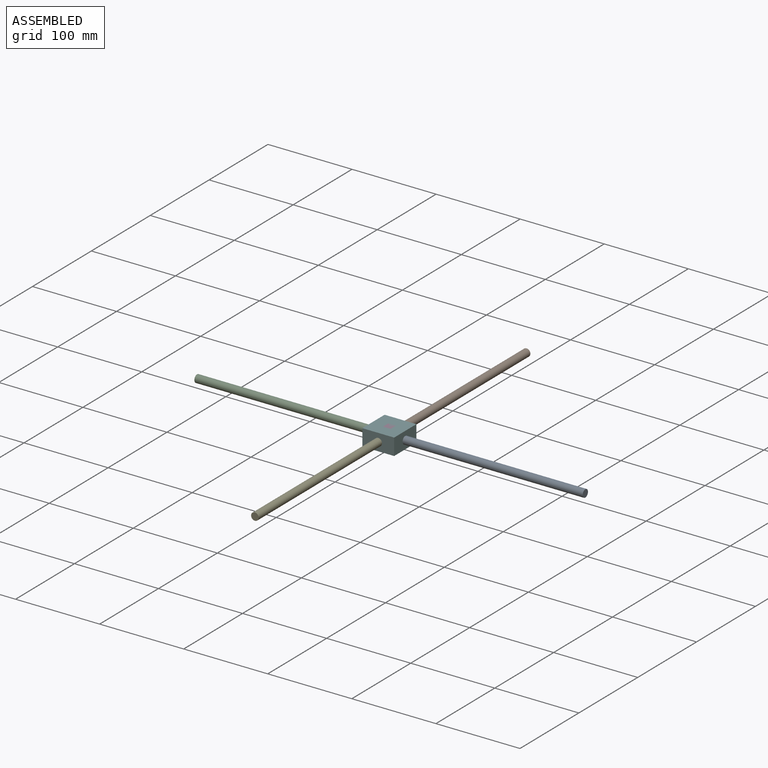
[diagram: assembled view]
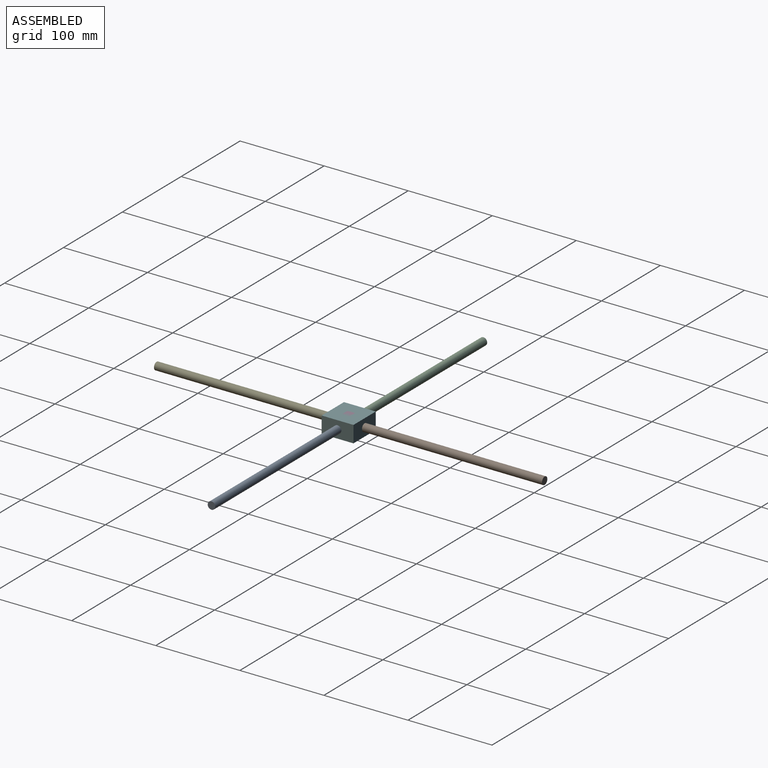
[diagram: assembled view, second angle]
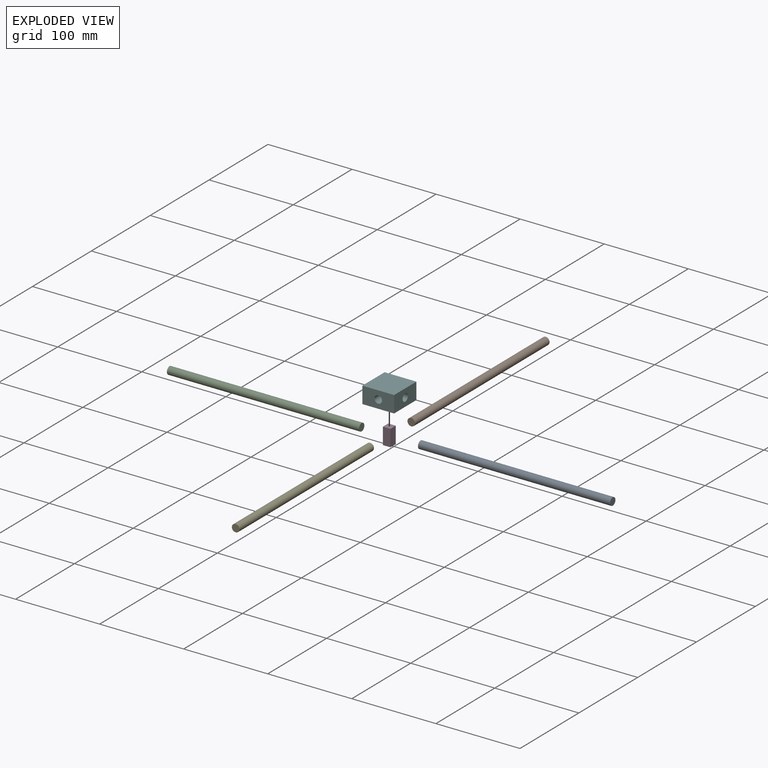
[diagram: exploded view]
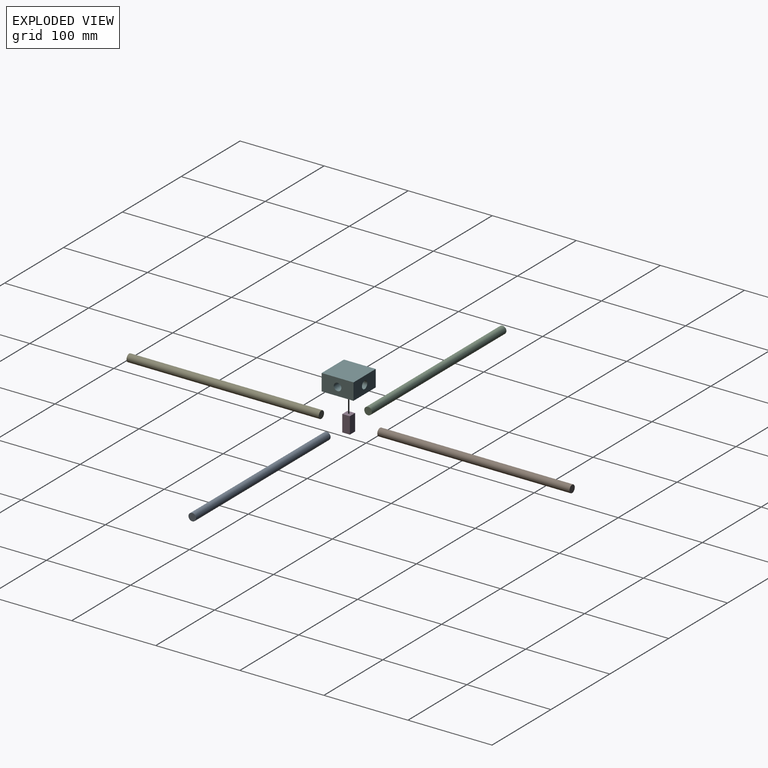
[diagram: exploded view, second angle]
ASSEMBLY  parts=6 mates=5
PART A: 3 faces, bbox 9x9x228.6 mm
  f0: cylinder r=4.5mm len=228.6mm, axis (0,0,-1), area 6463.5mm2, adj f1,f2
  f1: plane 9x9mm, normal (0,0,1), area 63.6mm2, adj f0
  f2: plane 9x9mm, normal (0,0,-1), area 63.6mm2, adj f0
PART B: same geometry as A
PART C: same geometry as A
PART D: 6 faces, bbox 9x9x19.8 mm
  f0: plane 19.81x9mm, normal (-1,0,0), area 178.3mm2, adj f1,f3,f4,f5
  f1: plane 19.81x9mm, normal (0,-1,0), area 178.3mm2, adj f0,f2,f4,f5
  f2: plane 19.81x9mm, normal (1,0,0), area 178.3mm2, adj f1,f3,f4,f5
  f3: plane 19.81x9mm, normal (0,1,0), area 178.3mm2, adj f0,f2,f4,f5
  f4: plane 9x9mm, normal (0,0,1), area 81mm2, adj f0,f1,f2,f3
  f5: plane 9x9mm, normal (0,0,-1), area 81mm2, adj f0,f1,f2,f3
PART E: same geometry as A
PART F: 10 faces, bbox 37.8x37.8x19.8 mm
  f0: cylinder r=4.5mm len=18.91mm, axis (1,0,0), area 453.8mm2, adj f3,f8,f9
  f1: cylinder r=4.5mm len=18.91mm, axis (1,0,0), area 453.8mm2, adj f5,f8,f9
  f2: plane 37.83x19.81mm, normal (0,-1,0), area 685.9mm2, adj f3,f5,f6,f7,f9
  f3: plane 37.83x19.81mm, normal (1,0,0), area 685.9mm2, adj f0,f2,f4,f6,f7
  f4: plane 37.83x19.81mm, normal (0,1,0), area 685.9mm2, adj f3,f5,f6,f7,f8
  f5: plane 37.83x19.81mm, normal (-1,0,0), area 685.9mm2, adj f1,f2,f4,f6,f7
  f6: plane 37.83x37.83mm, normal (0,0,1), area 1431.1mm2, adj f2,f3,f4,f5
  f7: plane 37.83x37.83mm, normal (0,0,-1), area 1431.1mm2, adj f2,f3,f4,f5
  f8: cylinder r=4.5mm len=18.91mm, axis (0,1,0), area 453.8mm2, adj f0,f1,f4
  f9: cylinder r=4.5mm len=18.91mm, axis (0,1,0), area 453.8mm2, adj f0,f1,f2
PLACE A rot(axis=(0,-1,0),90deg) t=(39.12,26.07,-126.56)mm
PLACE B rot(axis=(1,0,0),90deg) t=(-236.47,216.74,-41.65)mm
PLACE C rot(axis=(0.58,-0.58,-0.58),120deg) t=(-194.19,26.13,-41.65)mm
PLACE D t=(-250.96,36.41,-93.98)mm
PLACE E rot(axis=(1,0,0),90deg) t=(-236.47,-16.24,-41.65)mm
PLACE F t=(-175.07,-35.27,-84.07)mm fixed
MATE fastened D.f5 <-> F.f7  axis (0,0,-1) through (-193.98,-16.36,-93.98)mm
MATE slider C.f0 <-> D.f0  axis (1,0,0) through (-194.19,-16.36,-84.07)mm
MATE slider A.f0 <-> D.f2  axis (-1,0,0) through (-189.48,-16.36,-84.07)mm
MATE slider B.f0 <-> D.f3  axis (0,-1,0) through (-193.98,-11.86,-84.07)mm
MATE slider E.f0 <-> F.f8  axis (0,1,0) through (-193.98,-16.24,-84.07)mm
